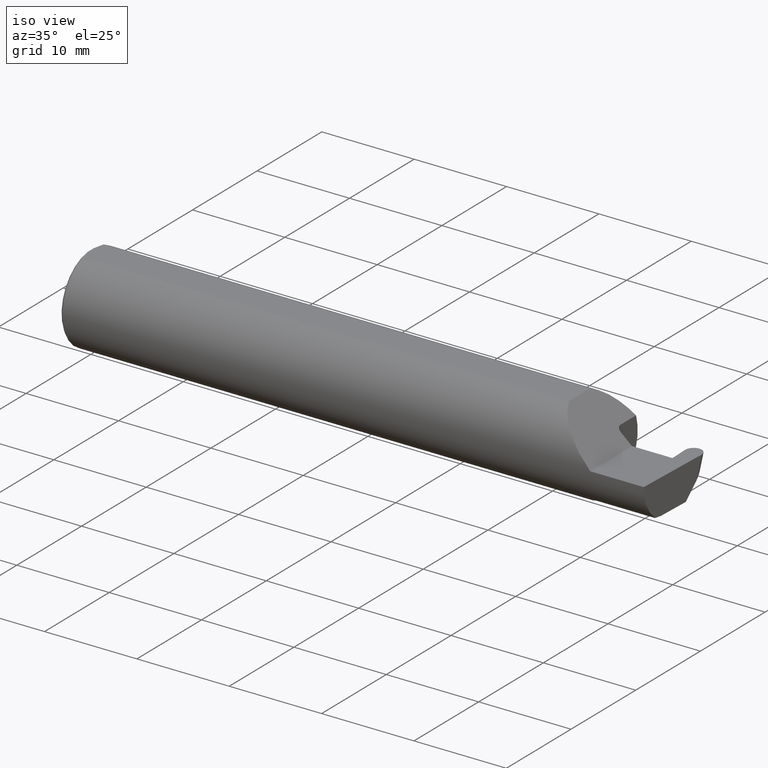
[diagram: clean part render]
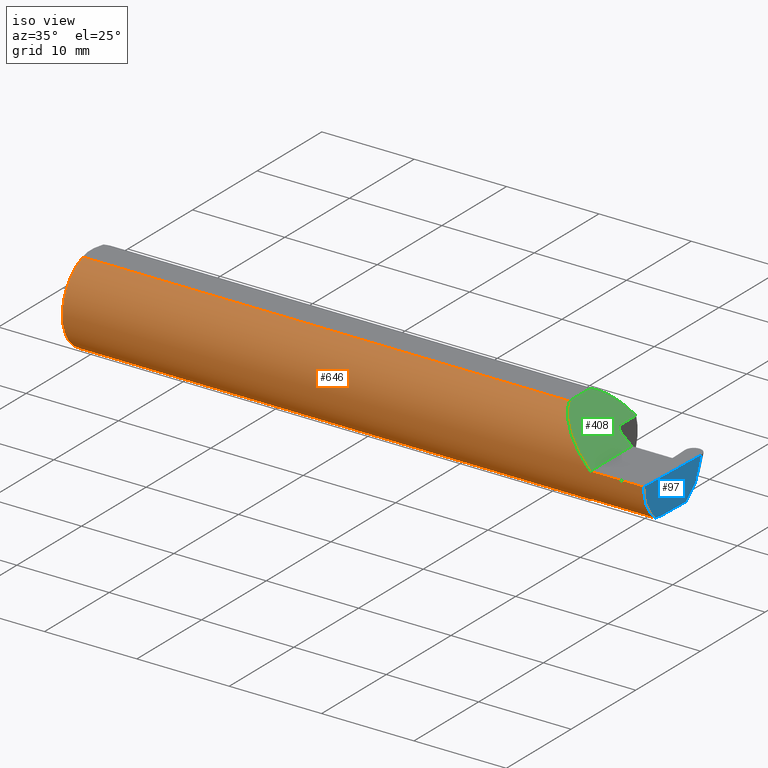
[diagram: same view with three faces highlighted in distinct colors, each labeled with its STEP entity id]
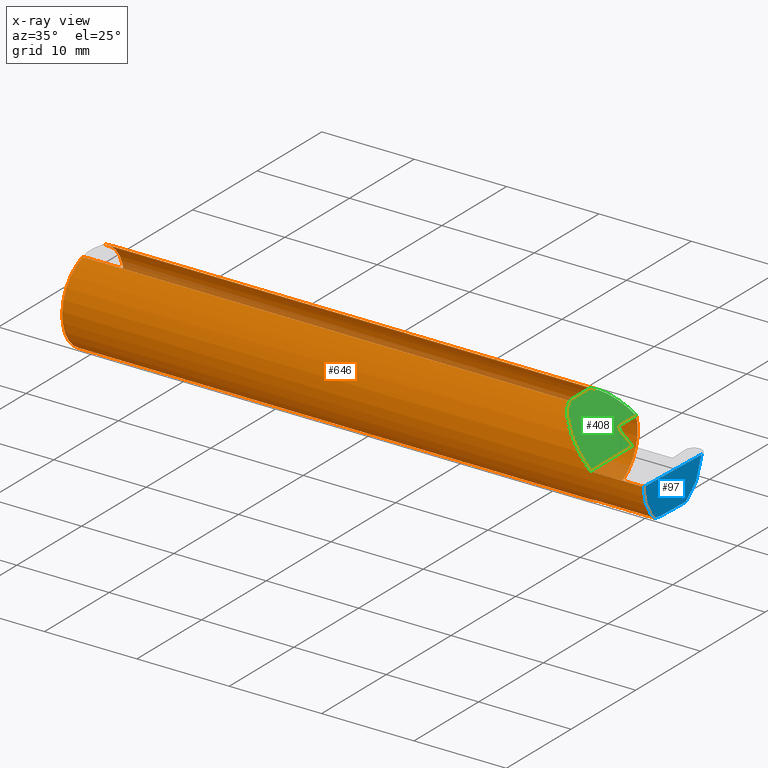
[diagram: x-ray of the same camera — body ghosted, the three highlighted faces saturated]
A machine part, iso view with three faces highlighted in distinct colors.
The next image is the same camera in x-ray (body ghosted, the three faces saturated) — at least one of them is partly hidden behind the body in this view.
Their STEP definitions:

[orange] entity #646 — the highlighted cylindrical surface (partial cylindrical patch) has radius 4.7587 mm, axis along (-1, -0, -0).
#3 = EDGE_LOOP ( 'NONE', ( #206, #472, #368, #521, #239, #60, #145, #120, #281, #515, #617 ) ) ;
#5 = CARTESIAN_POINT ( 'NONE',  ( 2.200000000000000178, 0.1774824568795465018, 0.05999999999999960920 ) ) ;
#16 = DIRECTION ( 'NONE',  ( -1.000000000000000000, -5.199944350551892858E-16, -0.000000000000000000 ) ) ;
#23 = CARTESIAN_POINT ( 'NONE',  ( 2.219511795768554396, -0.1163687266324231750, -0.1468371510166791294 ) ) ;
#32 = VECTOR ( 'NONE', #312, 39.37007874015748143 ) ;
#55 = CIRCLE ( 'NONE', #464, 0.1873499999999999888 ) ;
#60 = ORIENTED_EDGE ( 'NONE', *, *, #163, .T. ) ;
#67 = EDGE_CURVE ( 'NONE', #366, #142, #518, .T. ) ;
#80 = CARTESIAN_POINT ( 'NONE',  ( 2.208439486659306006, -0.1064616213911155906, -0.1542305641651501857 ) ) ;
#83 =( BOUNDED_CURVE ( )  B_SPLINE_CURVE ( 3, ( #446, #556, #653, #5 ),
 .UNSPECIFIED., .F., .F. ) 
 B_SPLINE_CURVE_WITH_KNOTS ( ( 4, 4 ),
 ( 0.3443758272561143752, 1.244796402594305018 ),
 .UNSPECIFIED. ) 
 CURVE ( )  GEOMETRIC_REPRESENTATION_ITEM ( )  RATIONAL_B_SPLINE_CURVE ( ( 1.000000000000000000, 0.9335704097038357574, 0.9335704097038357574, 1.000000000000000000 ) ) 
 REPRESENTATION_ITEM ( '' )  );
#88 = CARTESIAN_POINT ( 'NONE',  ( 2.200000000000000178, -0.06851976604679038685, -0.1743704796142199753 ) ) ;
#89 = DIRECTION ( 'NONE',  ( 1.000000000000000000, 0.000000000000000000, 0.000000000000000000 ) ) ;
#93 = CARTESIAN_POINT ( 'NONE',  ( 2.222174967710398796, -0.1172600179964003730, -0.1461167706989305870 ) ) ;
#110 = CARTESIAN_POINT ( 'NONE',  ( 2.488151344270815191, -0.1172600179964003869, -0.1461167706989304760 ) ) ;
#112 =( BOUNDED_CURVE ( )  B_SPLINE_CURVE ( 3, ( #619, #248, #514, #358 ),
 .UNSPECIFIED., .F., .F. ) 
 B_SPLINE_CURVE_WITH_KNOTS ( ( 4, 4 ),
 ( 4.712388980384688786, 5.938809479923471635 ),
 .UNSPECIFIED. ) 
 CURVE ( )  GEOMETRIC_REPRESENTATION_ITEM ( )  RATIONAL_B_SPLINE_CURVE ( ( 1.000000000000000000, 0.8785364999009659392, 0.8785364999009659392, 1.000000000000000000 ) ) 
 REPRESENTATION_ITEM ( '' )  );
#120 = ORIENTED_EDGE ( 'NONE', *, *, #265, .F. ) ;
#135 = CIRCLE ( 'NONE', #195, 0.1873499999999999888 ) ;
#136 = LINE ( 'NONE', #309, #32 ) ;
#142 = VERTEX_POINT ( 'NONE', #326 ) ;
#145 = ORIENTED_EDGE ( 'NONE', *, *, #465, .T. ) ;
#154 = CARTESIAN_POINT ( 'NONE',  ( 2.488255780514392335, -0.1873499999999999888, 0.000000000000000000 ) ) ;
#161 = VERTEX_POINT ( 'NONE', #268 ) ;
#163 = EDGE_CURVE ( 'NONE', #380, #383, #135, .T. ) ;
#167 =( BOUNDED_CURVE ( )  B_SPLINE_CURVE ( 3, ( #110, #287, #344, #154 ),
 .UNSPECIFIED., .F., .F. ) 
 B_SPLINE_CURVE_WITH_KNOTS ( ( 4, 4 ),
 ( 5.852427379562160858, 6.746954780470609592 ),
 .UNSPECIFIED. ) 
 CURVE ( )  GEOMETRIC_REPRESENTATION_ITEM ( )  RATIONAL_B_SPLINE_CURVE ( ( 1.000000000000000000, 0.9344226172588800949, 0.9344226172588800949, 1.000000000000000000 ) ) 
 REPRESENTATION_ITEM ( '' )  );
#170 = VERTEX_POINT ( 'NONE', #199 ) ;
#171 = CARTESIAN_POINT ( 'NONE',  ( 2.260000000000000231, -0.1873499999999999888, 2.939152317953647352E-17 ) ) ;
#172 = VERTEX_POINT ( 'NONE', #693 ) ;
#189 = CARTESIAN_POINT ( 'NONE',  ( 2.200000000000000178, -0.06851976604679038685, -0.1743704796142199753 ) ) ;
#195 = AXIS2_PLACEMENT_3D ( 'NONE', #429, #89, #597 ) ;
#199 = CARTESIAN_POINT ( 'NONE',  ( 2.488255780514392335, -0.1873499999999999888, 0.000000000000000000 ) ) ;
#206 = ORIENTED_EDGE ( 'NONE', *, *, #67, .F. ) ;
#223 = AXIS2_PLACEMENT_3D ( 'NONE', #267, #607, #543 ) ;
#236 = DIRECTION ( 'NONE',  ( 1.000000000000000000, 0.000000000000000000, 0.000000000000000000 ) ) ;
#237 = EDGE_CURVE ( 'NONE', #366, #170, #167, .T. ) ;
#239 = ORIENTED_EDGE ( 'NONE', *, *, #572, .F. ) ;
#242 = B_SPLINE_CURVE_WITH_KNOTS ( 'NONE', 3,
 ( #685, #93, #23, #428, #424, #80, #628, #467, #251, #371, #682, #88 ),
 .UNSPECIFIED., .F., .F.,
 ( 4, 2, 2, 2, 2, 4 ),
 ( 1.967976973658592312E-07, 0.0002120314145722271369, 0.0004238660314470883792, 0.0008475352651968000219, 0.001271204498946511665, 0.001694873732696223307 ),
 .UNSPECIFIED. ) ;
#248 = CARTESIAN_POINT ( 'NONE',  ( 2.178182770154592163, -0.1873500000000000443, 0.08181722984540684696 ) ) ;
#251 = CARTESIAN_POINT ( 'NONE',  ( 2.201843912362377420, -0.08846956905169059415, -0.1652353808078973196 ) ) ;
#256 = LINE ( 'NONE', #432, #673 ) ;
#265 = EDGE_CURVE ( 'NONE', #486, #161, #333, .T. ) ;
#267 = CARTESIAN_POINT ( 'NONE',  ( 0.000000000000000000, 0.000000000000000000, 0.000000000000000000 ) ) ;
#268 = CARTESIAN_POINT ( 'NONE',  ( 0.009999999999999346217, 0.06325108694718235836, 0.1763499999999999235 ) ) ;
#281 = ORIENTED_EDGE ( 'NONE', *, *, #335, .T. ) ;
#283 = CARTESIAN_POINT ( 'NONE',  ( 2.200000000000000178, 0.1774824568795465018, 0.05999999999999960920 ) ) ;
#287 = CARTESIAN_POINT ( 'NONE',  ( 2.487208827712859893, -0.1623470442677540371, -0.1099340280425340211 ) ) ;
#299 = CARTESIAN_POINT ( 'NONE',  ( 0.009999999999999346217, 0.000000000000000000, 0.000000000000000000 ) ) ;
#301 = CARTESIAN_POINT ( 'NONE',  ( 0.009999999999999346217, -0.06325108694718235836, 0.1763499999999999235 ) ) ;
#309 = CARTESIAN_POINT ( 'NONE',  ( 0.000000000000000000, -0.06325108694718235836, 0.1763499999999999235 ) ) ;
#312 = DIRECTION ( 'NONE',  ( 1.000000000000000000, 0.000000000000000000, 0.000000000000000000 ) ) ;
#326 = CARTESIAN_POINT ( 'NONE',  ( 2.225000000000000089, -0.1172600179964003730, -0.1461167706989306148 ) ) ;
#333 = LINE ( 'NONE', #548, #434 ) ;
#335 = EDGE_CURVE ( 'NONE', #486, #346, #83, .T. ) ;
#336 = CYLINDRICAL_SURFACE ( 'NONE', #223, 0.1873499999999999888 ) ;
#344 = CARTESIAN_POINT ( 'NONE',  ( 2.487246082891137355, -0.1873499999999999610, -0.05781030015605127109 ) ) ;
#346 = VERTEX_POINT ( 'NONE', #283 ) ;
#351 = DIRECTION ( 'NONE',  ( 0.000000000000000000, 0.000000000000000000, -1.000000000000000000 ) ) ;
#352 = CARTESIAN_POINT ( 'NONE',  ( 2.327422719999999945, -0.1172600179964004702, -0.1461167706989304760 ) ) ;
#358 = CARTESIAN_POINT ( 'NONE',  ( 2.083649999999998670, -0.06325108694718283020, 0.1763499999999999235 ) ) ;
#366 = VERTEX_POINT ( 'NONE', #393 ) ;
#368 = ORIENTED_EDGE ( 'NONE', *, *, #566, .T. ) ;
#371 = CARTESIAN_POINT ( 'NONE',  ( 2.200358271039144498, -0.07873626113568055196, -0.1700887912276897729 ) ) ;
#373 = VERTEX_POINT ( 'NONE', #171 ) ;
#380 = VERTEX_POINT ( 'NONE', #301 ) ;
#383 = VERTEX_POINT ( 'NONE', #622 ) ;
#393 = CARTESIAN_POINT ( 'NONE',  ( 2.488151344270815191, -0.1172600179964003869, -0.1461167706989304760 ) ) ;
#414 = EDGE_CURVE ( 'NONE', #373, #172, #112, .T. ) ;
#415 = DIRECTION ( 'NONE',  ( 1.000000000000000000, 5.199944350551892858E-16, 0.000000000000000000 ) ) ;
#423 = CIRCLE ( 'NONE', #501, 0.1873499999999999888 ) ;
#424 = CARTESIAN_POINT ( 'NONE',  ( 2.213203859946834218, -0.1120371980050635929, -0.1501764597936560974 ) ) ;
#428 = CARTESIAN_POINT ( 'NONE',  ( 2.215028532764138802, -0.1137241120808232947, -0.1488947809299406011 ) ) ;
#429 = CARTESIAN_POINT ( 'NONE',  ( 0.009999999999999346217, 0.000000000000000000, 0.000000000000000000 ) ) ;
#432 = CARTESIAN_POINT ( 'NONE',  ( 3.749399456654646757E-32, -0.1873499999999999610, 3.061616997868383634E-16 ) ) ;
#434 = VECTOR ( 'NONE', #493, 39.37007874015748143 ) ;
#446 = CARTESIAN_POINT ( 'NONE',  ( 2.083649999999998670, 0.06325108694718283020, 0.1763499999999999235 ) ) ;
#464 = AXIS2_PLACEMENT_3D ( 'NONE', #299, #236, #351 ) ;
#465 = EDGE_CURVE ( 'NONE', #383, #161, #55, .T. ) ;
#467 = CARTESIAN_POINT ( 'NONE',  ( 2.202960551809340028, -0.09317341542745716243, -0.1626248379125198873 ) ) ;
#472 = ORIENTED_EDGE ( 'NONE', *, *, #237, .T. ) ;
#486 = VERTEX_POINT ( 'NONE', #516 ) ;
#493 = DIRECTION ( 'NONE',  ( -1.000000000000000000, -0.000000000000000000, -0.000000000000000000 ) ) ;
#501 = AXIS2_PLACEMENT_3D ( 'NONE', #689, #415, #529 ) ;
#503 = VERTEX_POINT ( 'NONE', #189 ) ;
#514 = CARTESIAN_POINT ( 'NONE',  ( 2.111272250967329622, -0.1402645296119147678, 0.1487277490326685825 ) ) ;
#515 = ORIENTED_EDGE ( 'NONE', *, *, #581, .F. ) ;
#516 = CARTESIAN_POINT ( 'NONE',  ( 2.083649999999998670, 0.06325108694718283020, 0.1763499999999999235 ) ) ;
#518 = LINE ( 'NONE', #352, #695 ) ;
#521 = ORIENTED_EDGE ( 'NONE', *, *, #414, .T. ) ;
#523 = EDGE_CURVE ( 'NONE', #142, #503, #242, .T. ) ;
#529 = DIRECTION ( 'NONE',  ( 0.000000000000000000, 1.000000000000000000, 0.000000000000000000 ) ) ;
#543 = DIRECTION ( 'NONE',  ( 0.000000000000000000, 0.000000000000000000, 1.000000000000000000 ) ) ;
#548 = CARTESIAN_POINT ( 'NONE',  ( 0.000000000000000000, 0.06325108694718235836, 0.1763499999999999235 ) ) ;
#556 = CARTESIAN_POINT ( 'NONE',  ( 2.103305020982357387, 0.1180511404724818164, 0.1566949790176410395 ) ) ;
#566 = EDGE_CURVE ( 'NONE', #170, #373, #256, .T. ) ;
#572 = EDGE_CURVE ( 'NONE', #380, #172, #136, .T. ) ;
#581 = EDGE_CURVE ( 'NONE', #503, #346, #423, .T. ) ;
#584 = DIRECTION ( 'NONE',  ( -1.000000000000000000, -0.000000000000000000, -0.000000000000000000 ) ) ;
#597 = DIRECTION ( 'NONE',  ( 0.000000000000000000, 0.000000000000000000, -1.000000000000000000 ) ) ;
#607 = DIRECTION ( 'NONE',  ( -1.000000000000000000, -0.000000000000000000, -0.000000000000000000 ) ) ;
#617 = ORIENTED_EDGE ( 'NONE', *, *, #523, .F. ) ;
#619 = CARTESIAN_POINT ( 'NONE',  ( 2.260000000000000231, -0.1873499999999999888, 2.939152317953647352E-17 ) ) ;
#622 = CARTESIAN_POINT ( 'NONE',  ( 0.009999999999999346217, 0.000000000000000000, -0.1873499999999999888 ) ) ;
#628 = CARTESIAN_POINT ( 'NONE',  ( 2.206304331342287650, -0.1022198306720687871, -0.1570962426853819982 ) ) ;
#646 = ADVANCED_FACE ( 'NONE', ( #652 ), #336, .T. ) ;
#652 = FACE_OUTER_BOUND ( 'NONE', #3, .T. ) ;
#653 = CARTESIAN_POINT ( 'NONE',  ( 2.144848040052163896, 0.1588376980957759976, 0.1151519599478345868 ) ) ;
#673 = VECTOR ( 'NONE', #584, 39.37007874015748143 ) ;
#682 = CARTESIAN_POINT ( 'NONE',  ( 2.200000000000000178, -0.07368234487347169459, -0.1723418180300749503 ) ) ;
#685 = CARTESIAN_POINT ( 'NONE',  ( 2.225000000000000089, -0.1172600179964003730, -0.1461167706989306148 ) ) ;
#689 = CARTESIAN_POINT ( 'NONE',  ( 2.200000000000000178, 0.000000000000000000, 0.000000000000000000 ) ) ;
#693 = CARTESIAN_POINT ( 'NONE',  ( 2.083649999999998670, -0.06325108694718283020, 0.1763499999999999235 ) ) ;
#695 = VECTOR ( 'NONE', #16, 39.37007874015748143 ) ;

[blue] entity #97 — the highlighted planar face has unit normal (-0.9992, 0.0349, 0.0175).
#6 = ORIENTED_EDGE ( 'NONE', *, *, #237, .F. ) ;
#19 = CARTESIAN_POINT ( 'NONE',  ( 2.494284159956727809, 0.06030305154315080546, -0.1500000000000000500 ) ) ;
#21 = PLANE ( 'NONE',  #363 ) ;
#37 = CARTESIAN_POINT ( 'NONE',  ( 2.496725455933987536, 0.1069046986531339838, -0.1033983528900163373 ) ) ;
#75 = VERTEX_POINT ( 'NONE', #672 ) ;
#81 = CARTESIAN_POINT ( 'NONE',  ( 2.499978631868781331, 0.1483485405823076198, 0.000000000000000000 ) ) ;
#97 = ADVANCED_FACE ( 'NONE', ( #128 ), #21, .F. ) ;
#101 = VECTOR ( 'NONE', #625, 39.37007874015748143 ) ;
#106 = EDGE_CURVE ( 'NONE', #427, #613, #436, .T. ) ;
#110 = CARTESIAN_POINT ( 'NONE',  ( 2.488151344270815191, -0.1172600179964003869, -0.1461167706989304760 ) ) ;
#128 = FACE_OUTER_BOUND ( 'NONE', #681, .T. ) ;
#146 = LINE ( 'NONE', #37, #101 ) ;
#154 = CARTESIAN_POINT ( 'NONE',  ( 2.488255780514392335, -0.1873499999999999888, 0.000000000000000000 ) ) ;
#167 =( BOUNDED_CURVE ( )  B_SPLINE_CURVE ( 3, ( #110, #287, #344, #154 ),
 .UNSPECIFIED., .F., .F. ) 
 B_SPLINE_CURVE_WITH_KNOTS ( ( 4, 4 ),
 ( 5.852427379562160858, 6.746954780470609592 ),
 .UNSPECIFIED. ) 
 CURVE ( )  GEOMETRIC_REPRESENTATION_ITEM ( )  RATIONAL_B_SPLINE_CURVE ( ( 1.000000000000000000, 0.9344226172588800949, 0.9344226172588800949, 1.000000000000000000 ) ) 
 REPRESENTATION_ITEM ( '' )  );
#170 = VERTEX_POINT ( 'NONE', #199 ) ;
#178 = CARTESIAN_POINT ( 'NONE',  ( 2.497216288900020675, 0.1162741585162865438, -0.09402889302686366635 ) ) ;
#199 = CARTESIAN_POINT ( 'NONE',  ( 2.488255780514392335, -0.1873499999999999888, 0.000000000000000000 ) ) ;
#207 = EDGE_CURVE ( 'NONE', #366, #613, #702, .T. ) ;
#237 = EDGE_CURVE ( 'NONE', #366, #170, #167, .T. ) ;
#249 = ORIENTED_EDGE ( 'NONE', *, *, #106, .F. ) ;
#285 = VECTOR ( 'NONE', #569, 39.37007874015748143 ) ;
#287 = CARTESIAN_POINT ( 'NONE',  ( 2.487208827712859893, -0.1623470442677540371, -0.1099340280425340211 ) ) ;
#313 = DIRECTION ( 'NONE',  ( -0.9992386149554828290, 0.03489418134010802836, 0.01745240643728358798 ) ) ;
#321 = CARTESIAN_POINT ( 'NONE',  ( 2.499938386127352086, 0.1469717285548436392, 0.0004485129120875737938 ) ) ;
#338 = ORIENTED_EDGE ( 'NONE', *, *, #448, .T. ) ;
#344 = CARTESIAN_POINT ( 'NONE',  ( 2.487246082891137355, -0.1873499999999999610, -0.05781030015605127109 ) ) ;
#363 = AXIS2_PLACEMENT_3D ( 'NONE', #81, #313, #540 ) ;
#366 = VERTEX_POINT ( 'NONE', #393 ) ;
#367 = CARTESIAN_POINT ( 'NONE',  ( 2.489267684857003893, -0.08334999999999888332, -0.1500000000000000500 ) ) ;
#376 = LINE ( 'NONE', #321, #410 ) ;
#378 = VERTEX_POINT ( 'NONE', #178 ) ;
#393 = CARTESIAN_POINT ( 'NONE',  ( 2.488151344270815191, -0.1172600179964003869, -0.1461167706989304760 ) ) ;
#410 = VECTOR ( 'NONE', #532, 39.37007874015748854 ) ;
#427 = VERTEX_POINT ( 'NONE', #19 ) ;
#433 = CARTESIAN_POINT ( 'NONE',  ( 2.488868656527756240, -0.09477667630339334237, -0.1500000000000001887 ) ) ;
#436 = LINE ( 'NONE', #479, #559 ) ;
#443 = ORIENTED_EDGE ( 'NONE', *, *, #541, .T. ) ;
#448 = EDGE_CURVE ( 'NONE', #75, #170, #456, .T. ) ;
#456 = LINE ( 'NONE', #663, #285 ) ;
#468 = ORIENTED_EDGE ( 'NONE', *, *, #618, .F. ) ;
#473 = CARTESIAN_POINT ( 'NONE',  ( 2.489267684857003893, -0.08334999999999888332, -0.1500000000000000500 ) ) ;
#475 = CARTESIAN_POINT ( 'NONE',  ( 2.488151344270815191, -0.1172600179964003869, -0.1461167706989304760 ) ) ;
#479 = CARTESIAN_POINT ( 'NONE',  ( 2.489564769237789577, -0.07484261642542081039, -0.1500000000000000500 ) ) ;
#530 = DIRECTION ( 'NONE',  ( -0.03489949670249533481, -0.9993908270190959842, 1.211188436227143720E-19 ) ) ;
#532 = DIRECTION ( 'NONE',  ( 0.02739170151060053848, 0.3089010440752013587, 0.9506996579664918068 ) ) ;
#540 = DIRECTION ( 'NONE',  ( -0.03489949670249532787, -0.9993908270190959842, 0.000000000000000000 ) ) ;
#541 = EDGE_CURVE ( 'NONE', #378, #75, #376, .T. ) ;
#559 = VECTOR ( 'NONE', #530, 39.37007874015748143 ) ;
#569 = DIRECTION ( 'NONE',  ( -0.03489949670249533481, -0.9993908270190959842, 0.000000000000000000 ) ) ;
#613 = VERTEX_POINT ( 'NONE', #473 ) ;
#618 = EDGE_CURVE ( 'NONE', #378, #427, #146, .T. ) ;
#625 = DIRECTION ( 'NONE',  ( -0.03701744261649893980, -0.7066221440565397804, -0.7066221440565479961 ) ) ;
#634 = CARTESIAN_POINT ( 'NONE',  ( 2.488494925208532216, -0.1061291577212403886, -0.1486999626928448281 ) ) ;
#640 = ORIENTED_EDGE ( 'NONE', *, *, #207, .T. ) ;
#663 = CARTESIAN_POINT ( 'NONE',  ( 2.499978631868781331, 0.1483485405823076198, 0.000000000000000000 ) ) ;
#672 = CARTESIAN_POINT ( 'NONE',  ( 2.499925463505881851, 0.1468259978756916162, 0.000000000000000000 ) ) ;
#681 = EDGE_LOOP ( 'NONE', ( #468, #443, #338, #6, #640, #249 ) ) ;
#702 =( BOUNDED_CURVE ( )  B_SPLINE_CURVE ( 3, ( #475, #634, #433, #367 ),
 .UNSPECIFIED., .F., .F. ) 
 B_SPLINE_CURVE_WITH_KNOTS ( ( 4, 4 ),
 ( 0.8789888184544366601, 1.107026853503886965 ),
 .UNSPECIFIED. ) 
 CURVE ( )  GEOMETRIC_REPRESENTATION_ITEM ( )  RATIONAL_B_SPLINE_CURVE ( ( 1.000000000000000000, 0.9956712472009927595, 0.9956712472009927595, 1.000000000000000000 ) ) 
 REPRESENTATION_ITEM ( '' )  );

[green] entity #408 — the highlighted planar face has unit normal (-0.7071, 0, -0.7071).
#2 = CARTESIAN_POINT ( 'NONE',  ( 2.200000000000000178, 0.08104282222773613598, 0.05999999999999955369 ) ) ;
#4 = EDGE_CURVE ( 'NONE', #346, #703, #574, .T. ) ;
#5 = CARTESIAN_POINT ( 'NONE',  ( 2.200000000000000178, 0.1774824568795465018, 0.05999999999999960920 ) ) ;
#7 = CARTESIAN_POINT ( 'NONE',  ( 2.260000000000000231, -0.2500000000000000555, 2.939152317953647352E-17 ) ) ;
#20 = VECTOR ( 'NONE', #191, 39.37007874015748143 ) ;
#58 = DIRECTION ( 'NONE',  ( 0.000000000000000000, 1.000000000000000000, 0.000000000000000000 ) ) ;
#65 = CARTESIAN_POINT ( 'NONE',  ( 2.200000000000000178, -0.2500000000000001110, 0.05999999999999938716 ) ) ;
#76 = CARTESIAN_POINT ( 'NONE',  ( 2.248197494504676097, 0.06665000000000001479, 0.01180250549532442170 ) ) ;
#83 =( BOUNDED_CURVE ( )  B_SPLINE_CURVE ( 3, ( #446, #556, #653, #5 ),
 .UNSPECIFIED., .F., .F. ) 
 B_SPLINE_CURVE_WITH_KNOTS ( ( 4, 4 ),
 ( 0.3443758272561143752, 1.244796402594305018 ),
 .UNSPECIFIED. ) 
 CURVE ( )  GEOMETRIC_REPRESENTATION_ITEM ( )  RATIONAL_B_SPLINE_CURVE ( ( 1.000000000000000000, 0.9335704097038357574, 0.9335704097038357574, 1.000000000000000000 ) ) 
 REPRESENTATION_ITEM ( '' )  );
#111 = ORIENTED_EDGE ( 'NONE', *, *, #414, .F. ) ;
#112 =( BOUNDED_CURVE ( )  B_SPLINE_CURVE ( 3, ( #619, #248, #514, #358 ),
 .UNSPECIFIED., .F., .F. ) 
 B_SPLINE_CURVE_WITH_KNOTS ( ( 4, 4 ),
 ( 4.712388980384688786, 5.938809479923471635 ),
 .UNSPECIFIED. ) 
 CURVE ( )  GEOMETRIC_REPRESENTATION_ITEM ( )  RATIONAL_B_SPLINE_CURVE ( ( 1.000000000000000000, 0.8785364999009659392, 0.8785364999009659392, 1.000000000000000000 ) ) 
 REPRESENTATION_ITEM ( '' )  );
#119 = FACE_OUTER_BOUND ( 'NONE', #314, .T. ) ;
#130 = CARTESIAN_POINT ( 'NONE',  ( 2.225000000000000089, 0.06250952145814828165, 0.03500000000000007966 ) ) ;
#156 = CARTESIAN_POINT ( 'NONE',  ( 2.200000000000000178, 0.08104282222773613598, 0.05999999999999955369 ) ) ;
#171 = CARTESIAN_POINT ( 'NONE',  ( 2.260000000000000231, -0.1873499999999999888, 2.939152317953647352E-17 ) ) ;
#172 = VERTEX_POINT ( 'NONE', #693 ) ;
#191 = DIRECTION ( 'NONE',  ( -0.000000000000000000, 1.000000000000000000, -0.000000000000000000 ) ) ;
#201 = CARTESIAN_POINT ( 'NONE',  ( 2.225000000000000089, 0.06250952145814828165, 0.03500000000000007966 ) ) ;
#217 = CARTESIAN_POINT ( 'NONE',  ( 2.214233757172356043, 0.06188798250606978441, 0.04576624282764355650 ) ) ;
#231 = CARTESIAN_POINT ( 'NONE',  ( 2.260000000000000231, 0.06664999999999991764, 2.939152317953647352E-17 ) ) ;
#248 = CARTESIAN_POINT ( 'NONE',  ( 2.178182770154592163, -0.1873500000000000443, 0.08181722984540684696 ) ) ;
#255 = EDGE_CURVE ( 'NONE', #172, #486, #379, .T. ) ;
#259 = VECTOR ( 'NONE', #58, 39.37007874015748143 ) ;
#277 = CARTESIAN_POINT ( 'NONE',  ( 2.200842198961673102, 0.07338839382613028539, 0.05915780103832714992 ) ) ;
#283 = CARTESIAN_POINT ( 'NONE',  ( 2.200000000000000178, 0.1774824568795465018, 0.05999999999999960920 ) ) ;
#293 = EDGE_CURVE ( 'NONE', #703, #507, #505, .T. ) ;
#295 = DIRECTION ( 'NONE',  ( 5.199944350551892858E-16, -1.000000000000000000, -5.199944350551842568E-16 ) ) ;
#304 = PLANE ( 'NONE',  #620 ) ;
#314 = EDGE_LOOP ( 'NONE', ( #606, #483, #437, #509, #575, #111, #684 ) ) ;
#335 = EDGE_CURVE ( 'NONE', #486, #346, #83, .T. ) ;
#346 = VERTEX_POINT ( 'NONE', #283 ) ;
#358 = CARTESIAN_POINT ( 'NONE',  ( 2.083649999999998670, -0.06325108694718283020, 0.1763499999999999235 ) ) ;
#373 = VERTEX_POINT ( 'NONE', #171 ) ;
#379 = LINE ( 'NONE', #544, #259 ) ;
#381 = CARTESIAN_POINT ( 'NONE',  ( 2.225000000000000089, 0.06250952145814828165, 0.03500000000000007966 ) ) ;
#389 = CARTESIAN_POINT ( 'NONE',  ( 2.219643712645606559, 0.06157137645965355538, 0.04035628735439351217 ) ) ;
#408 = ADVANCED_FACE ( 'NONE', ( #119 ), #304, .F. ) ;
#409 = DIRECTION ( 'NONE',  ( -0.7071067811865441310, 0.000000000000000000, -0.7071067811865510144 ) ) ;
#414 = EDGE_CURVE ( 'NONE', #373, #172, #112, .T. ) ;
#437 = ORIENTED_EDGE ( 'NONE', *, *, #4, .F. ) ;
#440 = VERTEX_POINT ( 'NONE', #231 ) ;
#442 = CARTESIAN_POINT ( 'NONE',  ( 2.222331837506049901, 0.06186927743178084749, 0.03766816249395004562 ) ) ;
#446 = CARTESIAN_POINT ( 'NONE',  ( 2.083649999999998670, 0.06325108694718283020, 0.1763499999999999235 ) ) ;
#478 = LINE ( 'NONE', #679, #20 ) ;
#483 = ORIENTED_EDGE ( 'NONE', *, *, #293, .F. ) ;
#486 = VERTEX_POINT ( 'NONE', #516 ) ;
#489 = CARTESIAN_POINT ( 'NONE',  ( 2.199999999999999734, 0.07723724220654797079, 0.05999999999999977573 ) ) ;
#505 = B_SPLINE_CURVE_WITH_KNOTS ( 'NONE', 3,
 ( #2, #489, #277, #697, #552, #701, #217, #389, #442, #381 ),
 .UNSPECIFIED., .F., .F.,
 ( 4, 2, 2, 2, 4 ),
 ( 0.0002788109322551125661, 0.0005687008269983674646, 0.0008585907217416224174, 0.001148480616484877370, 0.001438370511228132323 ),
 .UNSPECIFIED. ) ;
#507 = VERTEX_POINT ( 'NONE', #201 ) ;
#509 = ORIENTED_EDGE ( 'NONE', *, *, #335, .F. ) ;
#510 = EDGE_CURVE ( 'NONE', #373, #440, #478, .T. ) ;
#514 = CARTESIAN_POINT ( 'NONE',  ( 2.111272250967329622, -0.1402645296119147678, 0.1487277490326685825 ) ) ;
#516 = CARTESIAN_POINT ( 'NONE',  ( 2.083649999999998670, 0.06325108694718283020, 0.1763499999999999235 ) ) ;
#536 = CARTESIAN_POINT ( 'NONE',  ( 2.236476718690367793, 0.06526343940705726931, 0.02352328130963214289 ) ) ;
#544 = CARTESIAN_POINT ( 'NONE',  ( 2.083649999999998670, -0.2500000000000000555, 0.1763499999999999235 ) ) ;
#547 = EDGE_CURVE ( 'NONE', #507, #440, #627, .T. ) ;
#552 = CARTESIAN_POINT ( 'NONE',  ( 2.206491315391052144, 0.06519110945230532916, 0.05350868460894749740 ) ) ;
#556 = CARTESIAN_POINT ( 'NONE',  ( 2.103305020982357387, 0.1180511404724818164, 0.1566949790176410395 ) ) ;
#574 = LINE ( 'NONE', #65, #641 ) ;
#575 = ORIENTED_EDGE ( 'NONE', *, *, #255, .F. ) ;
#596 = CARTESIAN_POINT ( 'NONE',  ( 2.260000000000000231, 0.06664999999999991764, 2.939152317953647352E-17 ) ) ;
#606 = ORIENTED_EDGE ( 'NONE', *, *, #547, .F. ) ;
#616 = DIRECTION ( 'NONE',  ( -0.7071067811865509034, 0.000000000000000000, 0.7071067811865440200 ) ) ;
#619 = CARTESIAN_POINT ( 'NONE',  ( 2.260000000000000231, -0.1873499999999999888, 2.939152317953647352E-17 ) ) ;
#620 = AXIS2_PLACEMENT_3D ( 'NONE', #7, #409, #616 ) ;
#627 =( BOUNDED_CURVE ( )  B_SPLINE_CURVE ( 3, ( #130, #536, #76, #596 ),
 .UNSPECIFIED., .F., .F. ) 
 B_SPLINE_CURVE_WITH_KNOTS ( ( 4, 4 ),
 ( 1.335292090074097437, 1.570796326794897002 ),
 .UNSPECIFIED. ) 
 CURVE ( )  GEOMETRIC_REPRESENTATION_ITEM ( )  RATIONAL_B_SPLINE_CURVE ( ( 1.000000000000000000, 0.9953834841226971708, 0.9953834841226971708, 1.000000000000000000 ) ) 
 REPRESENTATION_ITEM ( '' )  );
#641 = VECTOR ( 'NONE', #295, 39.37007874015748143 ) ;
#653 = CARTESIAN_POINT ( 'NONE',  ( 2.144848040052163896, 0.1588376980957759976, 0.1151519599478345868 ) ) ;
#679 = CARTESIAN_POINT ( 'NONE',  ( 2.260000000000000231, -0.2500000000000000555, 2.939152317953647352E-17 ) ) ;
#684 = ORIENTED_EDGE ( 'NONE', *, *, #510, .T. ) ;
#693 = CARTESIAN_POINT ( 'NONE',  ( 2.083649999999998670, -0.06325108694718283020, 0.1763499999999999235 ) ) ;
#697 = CARTESIAN_POINT ( 'NONE',  ( 2.204146777195072016, 0.06733032564037061407, 0.05585322280492719532 ) ) ;
#701 = CARTESIAN_POINT ( 'NONE',  ( 2.211575684638518169, 0.06248591091235525252, 0.04842431536148215226 ) ) ;
#703 = VERTEX_POINT ( 'NONE', #156 ) ;